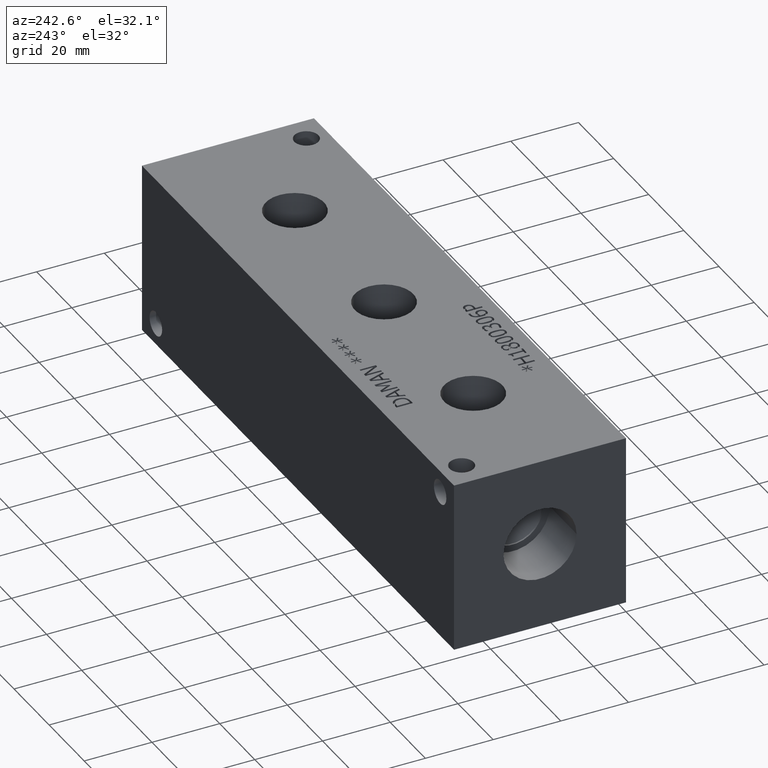
[diagram: clean part render]
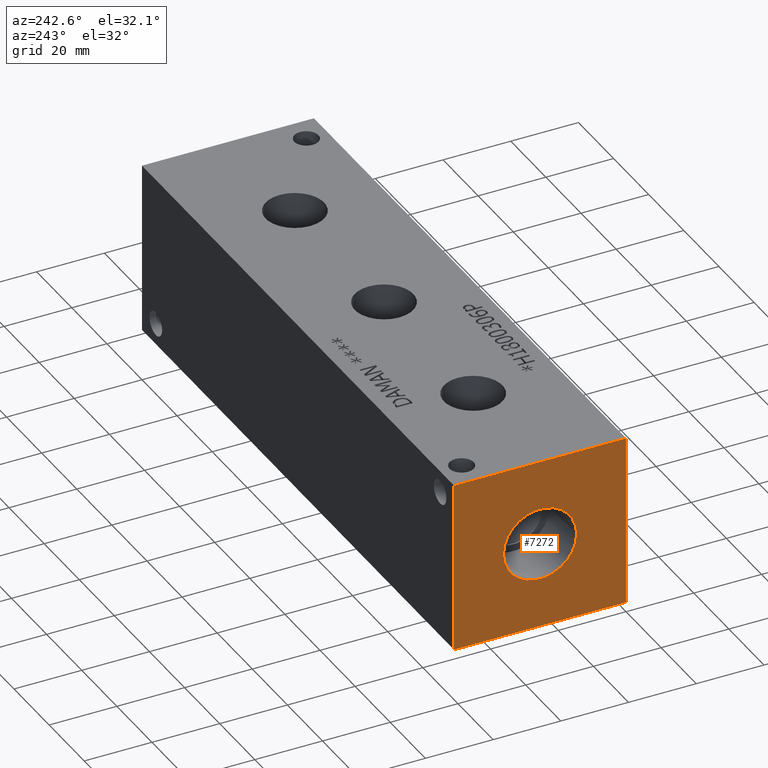
[diagram: same view with one face highlighted and labeled with its STEP entity id]
A machine part, auxiliary view. The second image highlights one B-rep face of the part: STEP entity #7272.
In plain terms, the highlighted planar face has unit normal (-1, 0, 0).
Its self-contained STEP definition (entity closure, byte-faithful):
#97=CIRCLE('',#7566,10.795);
#98=CIRCLE('',#7567,10.795);
#494=FACE_BOUND('',#1278,.T.);
#867=FACE_OUTER_BOUND('',#1277,.T.);
#1277=EDGE_LOOP('',(#6326,#6327,#6328,#6329));
#1278=EDGE_LOOP('',(#6330,#6331));
#1674=LINE('',#9907,#2377);
#1989=LINE('',#12456,#2692);
#1990=LINE('',#12457,#2693);
#1991=LINE('',#12458,#2694);
#2377=VECTOR('',#8274,10.);
#2692=VECTOR('',#8981,10.);
#2693=VECTOR('',#8982,10.);
#2694=VECTOR('',#8983,10.);
#2962=VERTEX_POINT('',#9900);
#2965=VERTEX_POINT('',#9905);
#3338=VERTEX_POINT('',#12348);
#3339=VERTEX_POINT('',#12349);
#3370=VERTEX_POINT('',#12454);
#3371=VERTEX_POINT('',#12455);
#3770=EDGE_CURVE('',#2965,#2962,#1674,.T.);
#4313=EDGE_CURVE('',#3338,#3339,#97,.T.);
#4314=EDGE_CURVE('',#3339,#3338,#98,.T.);
#4365=EDGE_CURVE('',#3370,#3371,#1989,.T.);
#4366=EDGE_CURVE('',#3371,#2962,#1990,.T.);
#4367=EDGE_CURVE('',#3370,#2965,#1991,.T.);
#6326=ORIENTED_EDGE('',*,*,#4365,.T.);
#6327=ORIENTED_EDGE('',*,*,#4366,.T.);
#6328=ORIENTED_EDGE('',*,*,#3770,.F.);
#6329=ORIENTED_EDGE('',*,*,#4367,.F.);
#6330=ORIENTED_EDGE('',*,*,#4313,.T.);
#6331=ORIENTED_EDGE('',*,*,#4314,.T.);
#6591=PLANE('',#7620);
#7272=ADVANCED_FACE('',(#867,#494),#6591,.T.);
#7566=AXIS2_PLACEMENT_3D('',#12350,#8852,#8853);
#7567=AXIS2_PLACEMENT_3D('',#12351,#8854,#8855);
#7620=AXIS2_PLACEMENT_3D('',#12453,#8979,#8980);
#8274=DIRECTION('',(0.,-1.,0.));
#8852=DIRECTION('center_axis',(1.,0.,0.));
#8853=DIRECTION('ref_axis',(0.,1.,0.));
#8854=DIRECTION('center_axis',(1.,0.,0.));
#8855=DIRECTION('ref_axis',(0.,1.,0.));
#8979=DIRECTION('center_axis',(-1.,0.,0.));
#8980=DIRECTION('ref_axis',(0.,-1.,0.));
#8981=DIRECTION('',(0.,-1.,0.));
#8982=DIRECTION('',(0.,0.,1.));
#8983=DIRECTION('',(0.,0.,1.));
#9900=CARTESIAN_POINT('',(0.,0.,50.8));
#9905=CARTESIAN_POINT('',(0.,50.8,50.8));
#9907=CARTESIAN_POINT('',(0.,50.8,50.8));
#12348=CARTESIAN_POINT('',(0.,36.195,25.4));
#12349=CARTESIAN_POINT('',(0.,14.605,25.4));
#12350=CARTESIAN_POINT('Origin',(0.,25.4,25.4));
#12351=CARTESIAN_POINT('Origin',(0.,25.4,25.4));
#12453=CARTESIAN_POINT('Origin',(0.,50.8,0.));
#12454=CARTESIAN_POINT('',(0.,50.8,0.));
#12455=CARTESIAN_POINT('',(0.,0.,0.));
#12456=CARTESIAN_POINT('',(0.,50.8,0.));
#12457=CARTESIAN_POINT('',(0.,0.,0.));
#12458=CARTESIAN_POINT('',(0.,50.8,0.));